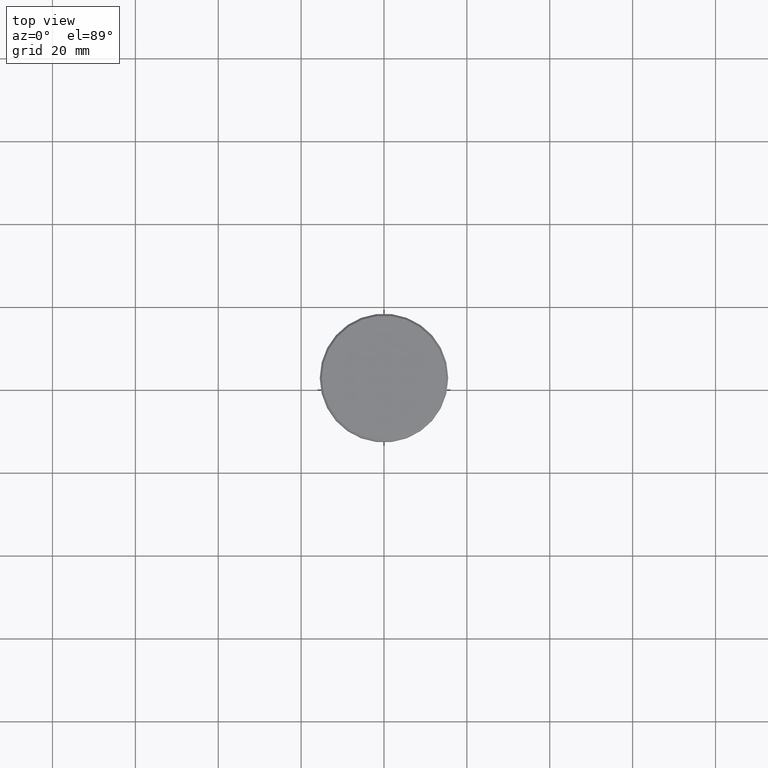
[diagram: clean part render]
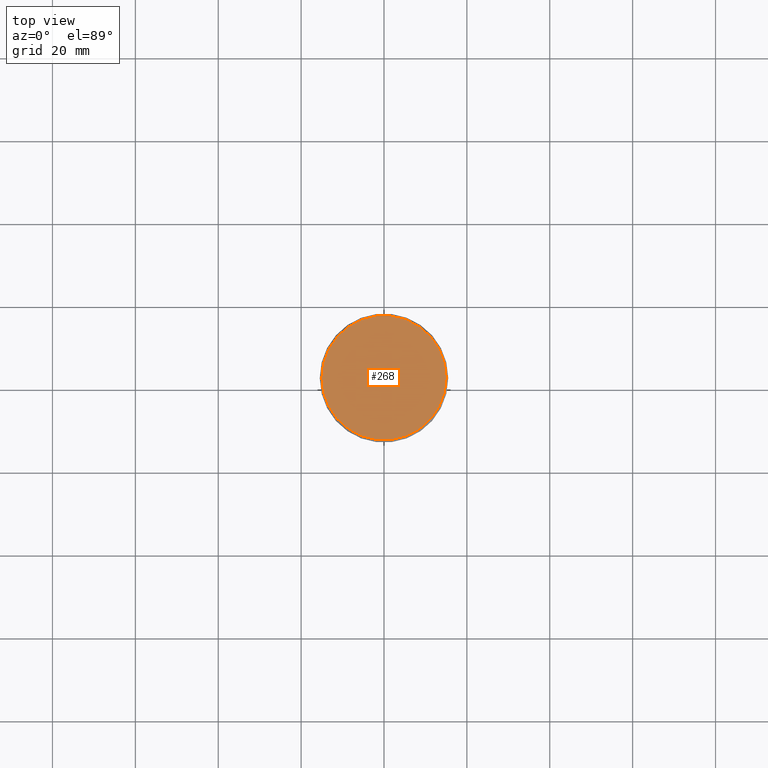
[diagram: same view with one face highlighted and labeled with its STEP entity id]
A machine part, top view. The second image highlights one B-rep face of the part: STEP entity #268.
In plain terms, the highlighted planar face has unit normal (0, -0, 1).
Its self-contained STEP definition (entity closure, byte-faithful):
#13 = EDGE_LOOP ( 'NONE', ( #323, #76 ) ) ;
#19 = PLANE ( 'NONE',  #761 ) ;
#41 = EDGE_CURVE ( 'NONE', #371, #440, #539, .T. ) ;
#65 = DIRECTION ( 'NONE',  ( -0.000000000000000000, -0.000000000000000000, 1.000000000000000000 ) ) ;
#76 = ORIENTED_EDGE ( 'NONE', *, *, #97, .T. ) ;
#78 = DIRECTION ( 'NONE',  ( 1.000000000000000000, 0.000000000000000000, 0.000000000000000000 ) ) ;
#97 = EDGE_CURVE ( 'NONE', #440, #371, #1119, .T. ) ;
#179 = AXIS2_PLACEMENT_3D ( 'NONE', #419, #688, #1137 ) ;
#218 = CARTESIAN_POINT ( 'NONE',  ( -14.99999999999998579, 0.000000000000000000, 0.000000000000000000 ) ) ;
#257 = CARTESIAN_POINT ( 'NONE',  ( 14.99999999999998579, 1.867586368699712587E-15, 0.000000000000000000 ) ) ;
#268 = ADVANCED_FACE ( 'NONE', ( #1125 ), #19, .T. ) ;
#323 = ORIENTED_EDGE ( 'NONE', *, *, #41, .T. ) ;
#371 = VERTEX_POINT ( 'NONE', #218 ) ;
#392 = CARTESIAN_POINT ( 'NONE',  ( 0.000000000000000000, 0.000000000000000000, 0.000000000000000000 ) ) ;
#419 = CARTESIAN_POINT ( 'NONE',  ( 0.000000000000000000, 0.000000000000000000, 0.000000000000000000 ) ) ;
#440 = VERTEX_POINT ( 'NONE', #257 ) ;
#539 = CIRCLE ( 'NONE', #179, 14.99999999999998579 ) ;
#683 = DIRECTION ( 'NONE',  ( 1.000000000000000000, 0.000000000000000000, 0.000000000000000000 ) ) ;
#688 = DIRECTION ( 'NONE',  ( -0.000000000000000000, -0.000000000000000000, 1.000000000000000000 ) ) ;
#756 = DIRECTION ( 'NONE',  ( 0.000000000000000000, -0.000000000000000000, 1.000000000000000000 ) ) ;
#761 = AXIS2_PLACEMENT_3D ( 'NONE', #392, #756, #683 ) ;
#903 = CARTESIAN_POINT ( 'NONE',  ( 0.000000000000000000, 0.000000000000000000, 0.000000000000000000 ) ) ;
#960 = AXIS2_PLACEMENT_3D ( 'NONE', #903, #65, #78 ) ;
#1119 = CIRCLE ( 'NONE', #960, 14.99999999999998579 ) ;
#1125 = FACE_OUTER_BOUND ( 'NONE', #13, .T. ) ;
#1137 = DIRECTION ( 'NONE',  ( 1.000000000000000000, 0.000000000000000000, 0.000000000000000000 ) ) ;